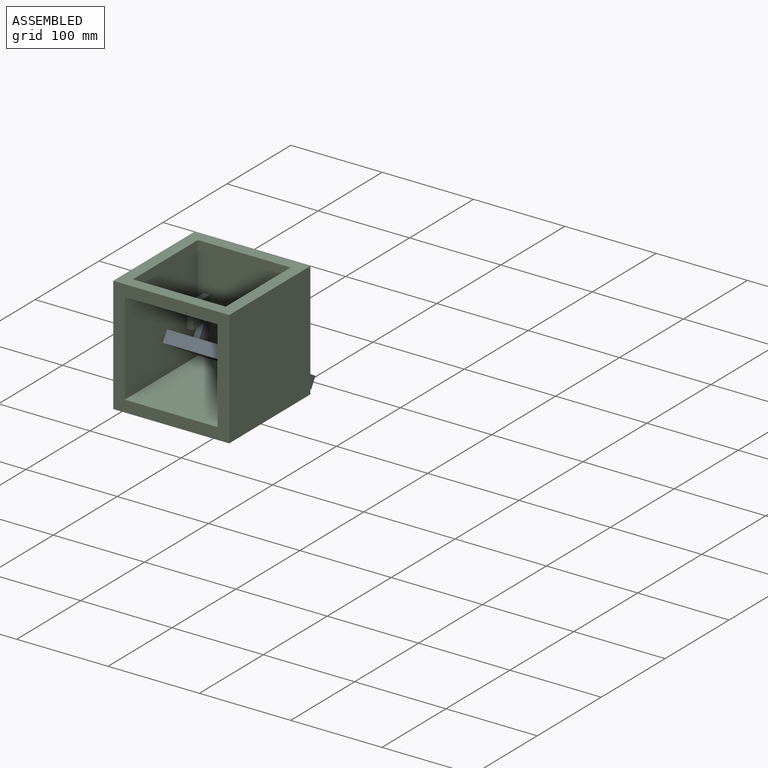
[diagram: assembled view]
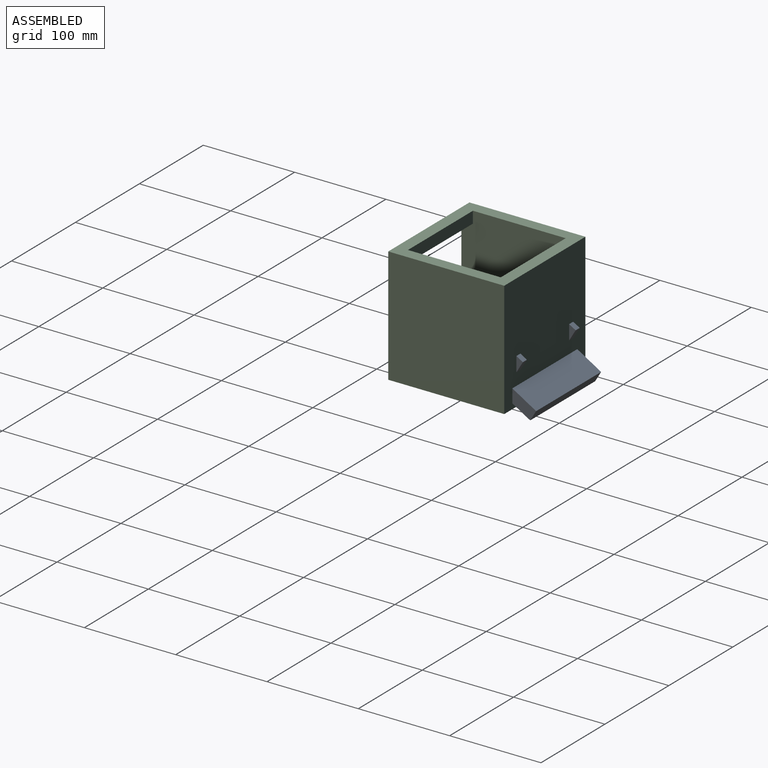
[diagram: assembled view, second angle]
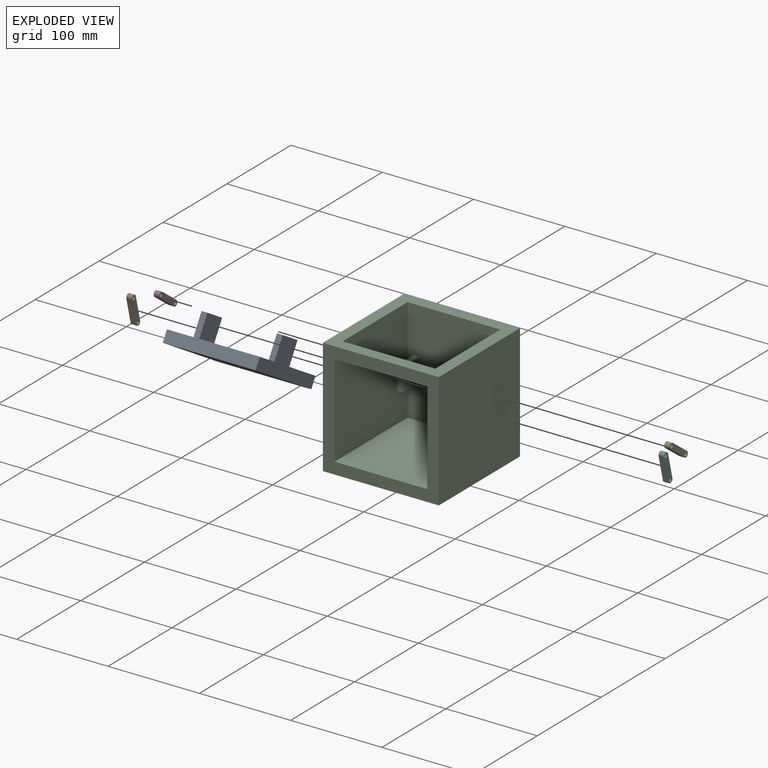
[diagram: exploded view]
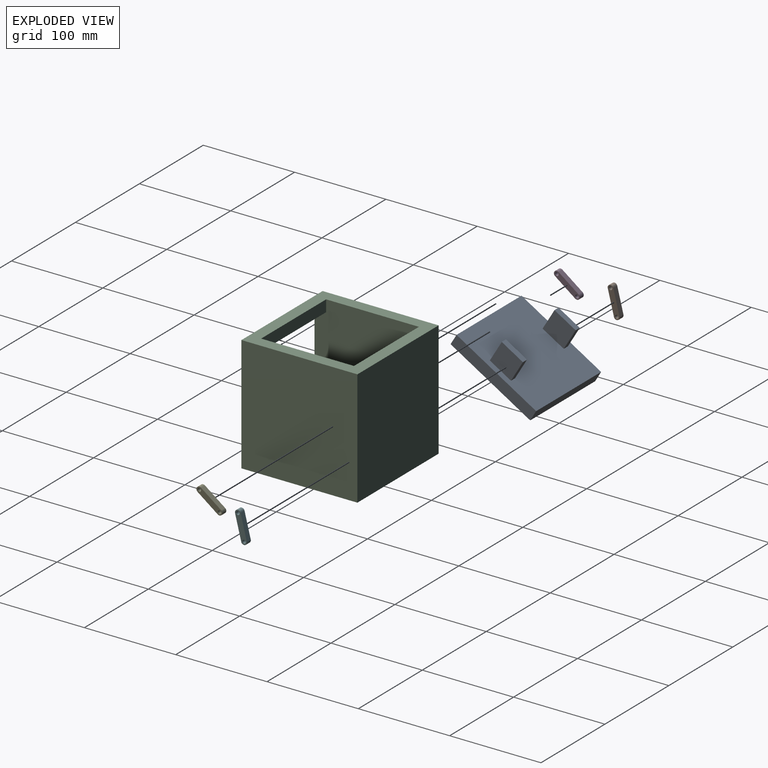
[diagram: exploded view, second angle]
ASSEMBLY  parts=6 mates=8
PART A: 16 faces, bbox 101.6x101.6x38.1 mm
  f0: plane 101.6x12.7mm, normal (-1,0,0), area 1290.3mm2, adj f1,f3,f4,f5
  f1: plane 101.6x12.7mm, normal (0,-1,0), area 1290.3mm2, adj f0,f2,f4,f5
  f2: plane 101.6x12.7mm, normal (1,0,0), area 1290.3mm2, adj f1,f3,f4,f5
  f3: plane 101.6x12.7mm, normal (0,1,0), area 1290.3mm2, adj f0,f2,f4,f5
  f4: plane 101.6x101.6mm, normal (0,0,1), area 9979.9mm2, adj f0,f1,f2,f3,f7,f8,f9,f10
  f5: plane 101.6x101.6mm, normal (0,0,-1), area 10322.6mm2, adj f0,f1,f2,f3
  f6: plane 26.98x6.35mm, normal (0,0,1), area 171.3mm2, adj f7,f8,f9,f10
  f7: plane 26.98x25.4mm, normal (1,0,0), area 685.2mm2, adj f4,f6,f8,f10
  f8: plane 25.4x6.35mm, normal (0,-1,0), area 161.3mm2, adj f4,f6,f7,f9
  f9: plane 26.98x25.4mm, normal (-1,0,0), area 685.2mm2, adj f4,f6,f8,f10
  f10: plane 25.4x6.35mm, normal (0,1,0), area 161.3mm2, adj f4,f6,f7,f9
  f11: plane 26.98x6.35mm, normal (0,0,1), area 171.3mm2, adj f12,f13,f14,f15
  f12: plane 26.98x25.4mm, normal (1,0,0), area 685.2mm2, adj f4,f11,f13,f15
  f13: plane 25.4x6.35mm, normal (0,-1,0), area 161.3mm2, adj f4,f11,f12,f14
  f14: plane 26.98x25.4mm, normal (-1,0,0), area 685.2mm2, adj f4,f11,f13,f15
  f15: plane 25.4x6.35mm, normal (0,1,0), area 161.3mm2, adj f4,f11,f12,f14
PART B: 8 faces, bbox 6.4x6.1x33.8 mm
  f0: cylinder r=3.17mm len=6.35mm, axis (0,1,0), area 60.8mm2, adj f1,f3,f6,f7
  f1: plane 27.48x6.1mm, normal (-1,0,0), area 167.5mm2, adj f0,f2,f6,f7
  f2: cylinder r=3.17mm len=6.35mm, axis (0,1,0), area 60.8mm2, adj f1,f3,f6,f7
  f3: plane 27.48x6.1mm, normal (1,0,0), area 167.5mm2, adj f0,f2,f6,f7
  f4: cylinder r=1.91mm len=6.1mm, axis (0,1,0), area 73mm2, adj f6,f7
  f5: cylinder r=1.91mm len=6.1mm, axis (0,1,0), area 73mm2, adj f6,f7
  f6: plane 33.83x6.35mm, normal (0,-1,0), area 183.4mm2, adj f0,f1,f2,f3,f4,f5
  f7: plane 33.83x6.35mm, normal (0,1,0), area 183.4mm2, adj f0,f1,f2,f3,f4,f5
PART C: 22 faces, bbox 127x127x127 mm
  f0: plane 127x127mm, normal (0,0,1), area 5806.4mm2, adj f1,f3,f4,f5,f6,f8,f10,f21
  f1: plane 127x127mm, normal (-1,0,0), area 16129mm2, adj f0,f2,f4,f5
  f2: plane 127x127mm, normal (0,0,-1), area 16129mm2, adj f1,f3,f4,f5
  f3: plane 127x127mm, normal (1,0,0), area 16129mm2, adj f0,f2,f4,f5
  f4: plane 127x127mm, normal (0,-1,0), area 5806.4mm2, adj f0,f1,f2,f3,f6,f7,f8,f9
  f5: plane 127x127mm, normal (0,1,0), area 16129mm2, adj f0,f1,f2,f3
  f6: plane 114.3x114.3mm, normal (1,0,0), area 12903.2mm2, adj f0,f4,f7,f9,f10,f21
  f7: plane 114.3x101.6mm, normal (0,0,1), area 11612.9mm2, adj f4,f6,f8,f10
  f8: plane 114.3x114.3mm, normal (-1,0,0), area 12903.2mm2, adj f0,f4,f7,f9,f10,f21
  f9: plane 101.6x12.7mm, normal (0,0,-1), area 1290.3mm2, adj f4,f6,f8,f21
  f10: plane 114.3x101.6mm, normal (0,-1,0), area 11290.3mm2, adj f0,f6,f7,f8,f11,f12,f13,f14
  f11: plane 25.4x25.4mm, normal (1,0,0), area 645.2mm2, adj f10,f12,f14,f15
  f12: plane 25.4x6.35mm, normal (0,0,1), area 161.3mm2, adj f10,f11,f13,f15
  f13: plane 25.4x25.4mm, normal (-1,0,0), area 645.2mm2, adj f10,f12,f14,f15
  f14: plane 25.4x6.35mm, normal (0,0,-1), area 161.3mm2, adj f10,f11,f13,f15
  f15: plane 25.4x6.35mm, normal (0,-1,0), area 161.3mm2, adj f11,f12,f13,f14
  f16: plane 25.4x6.35mm, normal (0,0,1), area 161.3mm2, adj f10,f17,f19,f20
  f17: plane 25.4x25.4mm, normal (-1,0,0), area 645.2mm2, adj f10,f16,f18,f20
  f18: plane 25.4x6.35mm, normal (0,0,-1), area 161.3mm2, adj f10,f17,f19,f20
  f19: plane 25.4x25.4mm, normal (1,0,0), area 645.2mm2, adj f10,f16,f18,f20
  f20: plane 25.4x6.35mm, normal (0,-1,0), area 161.3mm2, adj f16,f17,f18,f19
  f21: plane 101.6x12.7mm, normal (0,1,0), area 1290.3mm2, adj f0,f6,f8,f9
PART D: same geometry as B
PART E: same geometry as B
PART F: same geometry as B
PLACE A rot(axis=(-1,0,0),30.9deg) t=(-29.82,24.61,27.82)mm
PLACE B rot(axis=(0.12,-0.12,0.98),90.9deg) t=(-84.7,81.49,52.49)mm
PLACE C t=(-6.04,60.22,32.44)mm fixed
PLACE D rot(axis=(0.41,-0.41,0.81),101.6deg) t=(-84.7,47.84,99.12)mm
PLACE E rot(axis=(0.41,0.41,-0.81),101.6deg) t=(16.39,8.28,45.85)mm
PLACE F rot(axis=(0.12,0.12,-0.98),90.9deg) t=(16.39,17.19,36.15)mm
MATE revolute E.f0 <-> C.f19  axis (1,0,0) through (10.3,22.12,76.9)mm
MATE revolute E.f2 <-> A.f12  axis (1,0,0) through (10.3,44.18,60.52)mm
MATE revolute F.f0 <-> C.f19  axis (-1,0,0) through (10.3,47.52,51.5)mm
MATE revolute D.f0 <-> C.f13  axis (-1,0,0) through (-78.6,22.12,76.9)mm
MATE revolute B.f0 <-> C.f13  axis (-1,0,0) through (-78.6,47.52,51.5)mm
MATE revolute B.f2 <-> A.f9  axis (-1,0,0) through (-78.6,54.28,24.87)mm
MATE revolute A.f9 <-> D.f2  axis (-1,0,0) through (-78.6,44.18,60.52)mm
MATE revolute F.f2 <-> A.f12  axis (-1,0,0) through (10.3,54.28,24.87)mm
